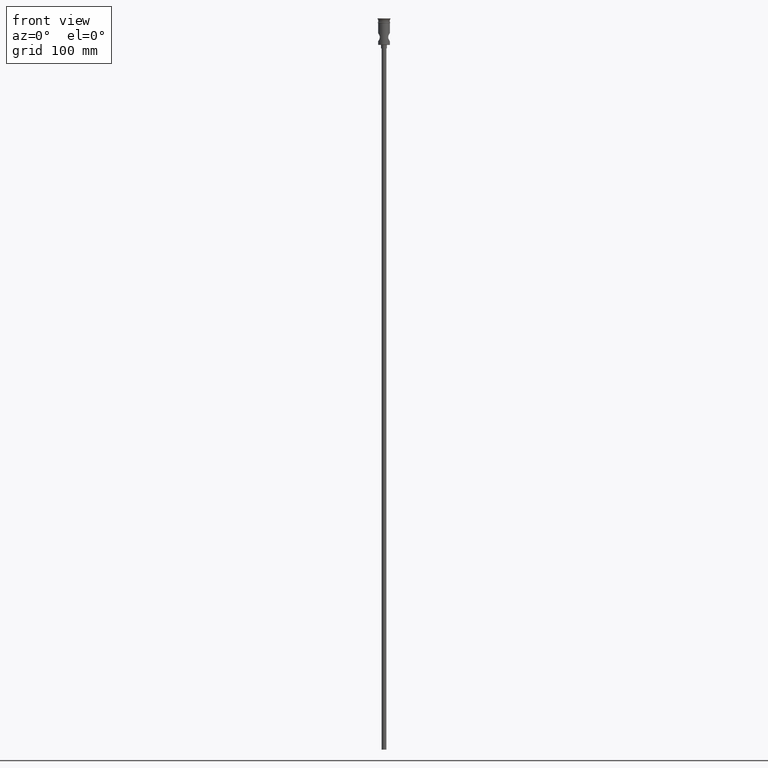
[diagram: clean part render]
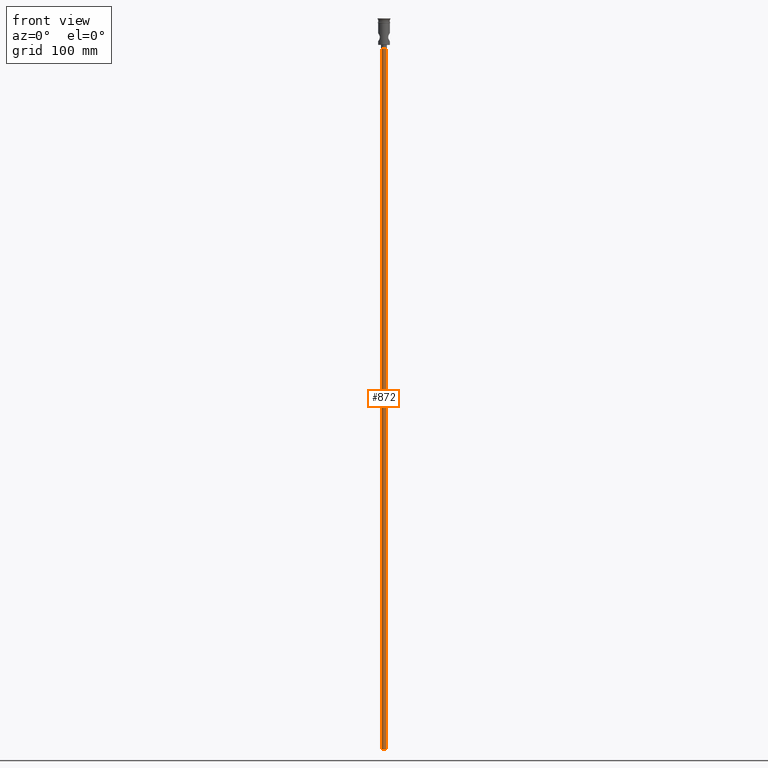
[diagram: same view with one face highlighted and labeled with its STEP entity id]
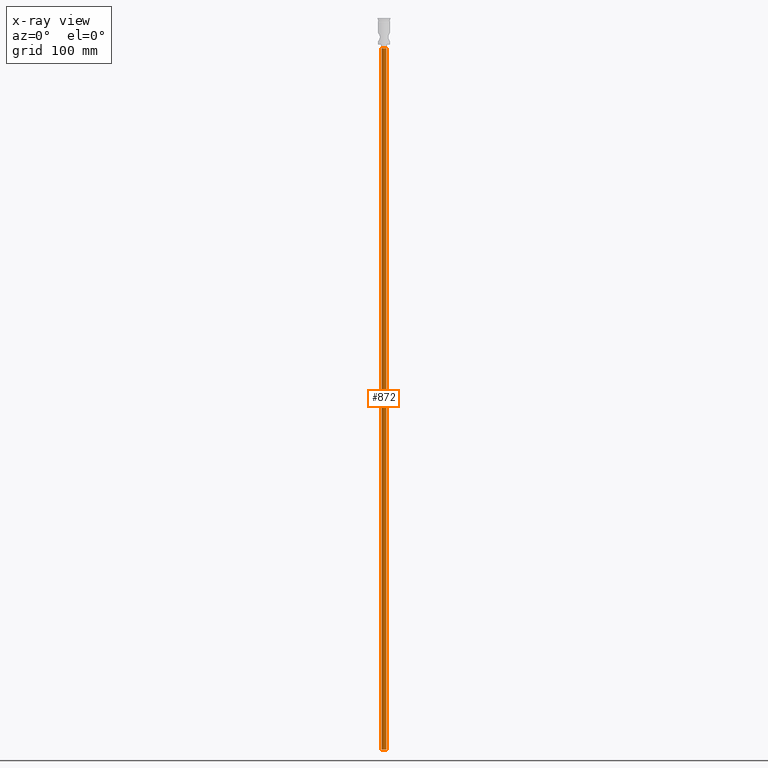
[diagram: x-ray of the same camera — body ghosted, the highlighted face saturated]
A machine part, front view. The second image highlights one B-rep face of the part: STEP entity #872.
The next image is the same camera in x-ray: the body ghosted, the highlighted face saturated — about 0% of this face is hidden behind the body in this view.
In plain terms, the highlighted cylindrical surface (edge-blend (fillet) strip) has radius 2 mm, axis along (-0, -0, 1).
Its self-contained STEP definition (entity closure, byte-faithful):
#20 = CARTESIAN_POINT ( 'NONE',  ( -2.000000000000000000, 2.449293598294706414E-16, -622.4999999999998863 ) ) ;
#40 = EDGE_CURVE ( 'NONE', #328, #964, #695, .T. ) ;
#41 = DIRECTION ( 'NONE',  ( -0.000000000000000000, -0.000000000000000000, 1.000000000000000000 ) ) ;
#120 = CARTESIAN_POINT ( 'NONE',  ( 2.000000000000000000, 0.000000000000000000, -622.4999999999998863 ) ) ;
#145 = ORIENTED_EDGE ( 'NONE', *, *, #607, .T. ) ;
#291 = CARTESIAN_POINT ( 'NONE',  ( 0.000000000000000000, 0.000000000000000000, -25.50000000000000000 ) ) ;
#328 = VERTEX_POINT ( 'NONE', #770 ) ;
#420 = EDGE_LOOP ( 'NONE', ( #1334, #1290, #645, #145 ) ) ;
#492 = CARTESIAN_POINT ( 'NONE',  ( 2.000000000000000000, 0.000000000000000000, -25.50000000000000000 ) ) ;
#514 = EDGE_CURVE ( 'NONE', #1277, #1442, #905, .T. ) ;
#538 = DIRECTION ( 'NONE',  ( 0.000000000000000000, 0.000000000000000000, -1.000000000000000000 ) ) ;
#570 = VECTOR ( 'NONE', #1266, 1000.000000000000000 ) ;
#585 = FACE_OUTER_BOUND ( 'NONE', #420, .T. ) ;
#607 = EDGE_CURVE ( 'NONE', #1442, #964, #1457, .T. ) ;
#645 = ORIENTED_EDGE ( 'NONE', *, *, #514, .T. ) ;
#695 = LINE ( 'NONE', #20, #570 ) ;
#763 = DIRECTION ( 'NONE',  ( -1.000000000000000000, 0.000000000000000000, 0.000000000000000000 ) ) ;
#768 = EDGE_CURVE ( 'NONE', #1277, #328, #1320, .T. ) ;
#770 = CARTESIAN_POINT ( 'NONE',  ( -2.000000000000000000, 2.449293598294706414E-16, -622.4999999999998863 ) ) ;
#807 = DIRECTION ( 'NONE',  ( 1.000000000000000000, 0.000000000000000000, 0.000000000000000000 ) ) ;
#817 = AXIS2_PLACEMENT_3D ( 'NONE', #291, #538, #1065 ) ;
#841 = VECTOR ( 'NONE', #41, 1000.000000000000000 ) ;
#872 = ADVANCED_FACE ( 'NONE', ( #585 ), #1384, .T. ) ;
#905 = LINE ( 'NONE', #1257, #841 ) ;
#937 = AXIS2_PLACEMENT_3D ( 'NONE', #1001, #1325, #763 ) ;
#964 = VERTEX_POINT ( 'NONE', #1424 ) ;
#1001 = CARTESIAN_POINT ( 'NONE',  ( 0.000000000000000000, 0.000000000000000000, -622.4999999999998863 ) ) ;
#1011 = AXIS2_PLACEMENT_3D ( 'NONE', #1370, #1132, #807 ) ;
#1065 = DIRECTION ( 'NONE',  ( -1.000000000000000000, 0.000000000000000000, 0.000000000000000000 ) ) ;
#1132 = DIRECTION ( 'NONE',  ( -0.000000000000000000, -0.000000000000000000, 1.000000000000000000 ) ) ;
#1257 = CARTESIAN_POINT ( 'NONE',  ( 2.000000000000000000, 0.000000000000000000, -622.4999999999998863 ) ) ;
#1266 = DIRECTION ( 'NONE',  ( -0.000000000000000000, -0.000000000000000000, 1.000000000000000000 ) ) ;
#1277 = VERTEX_POINT ( 'NONE', #120 ) ;
#1290 = ORIENTED_EDGE ( 'NONE', *, *, #768, .F. ) ;
#1320 = CIRCLE ( 'NONE', #937, 2.000000000000000000 ) ;
#1325 = DIRECTION ( 'NONE',  ( 0.000000000000000000, 0.000000000000000000, -1.000000000000000000 ) ) ;
#1334 = ORIENTED_EDGE ( 'NONE', *, *, #40, .F. ) ;
#1370 = CARTESIAN_POINT ( 'NONE',  ( 0.000000000000000000, 0.000000000000000000, -622.4999999999998863 ) ) ;
#1384 = CYLINDRICAL_SURFACE ( 'NONE', #1011, 2.000000000000000000 ) ;
#1424 = CARTESIAN_POINT ( 'NONE',  ( -2.000000000000000000, 2.449293598294706414E-16, -25.50000000000000000 ) ) ;
#1442 = VERTEX_POINT ( 'NONE', #492 ) ;
#1457 = CIRCLE ( 'NONE', #817, 2.000000000000000000 ) ;